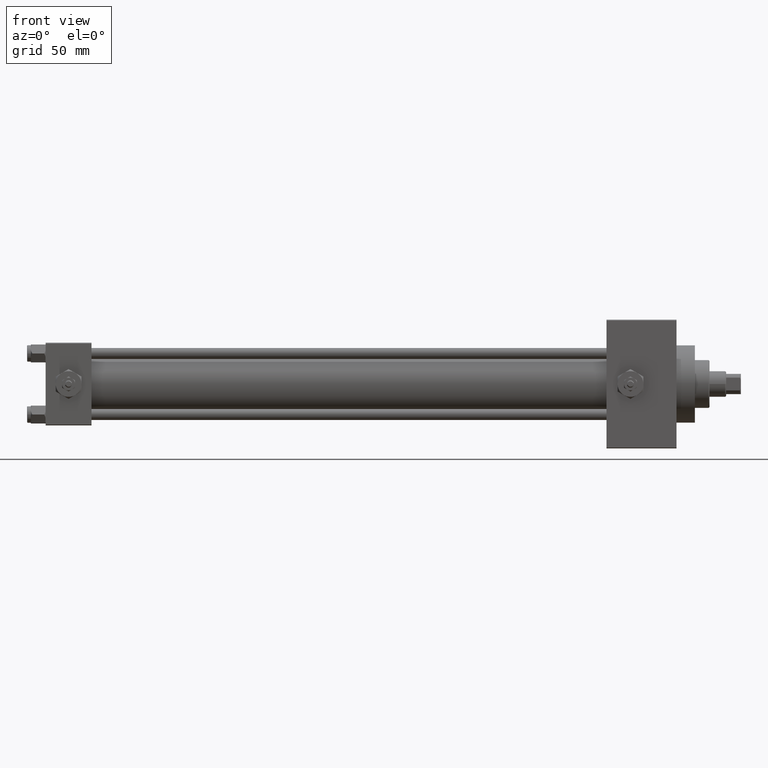
[diagram: clean part render]
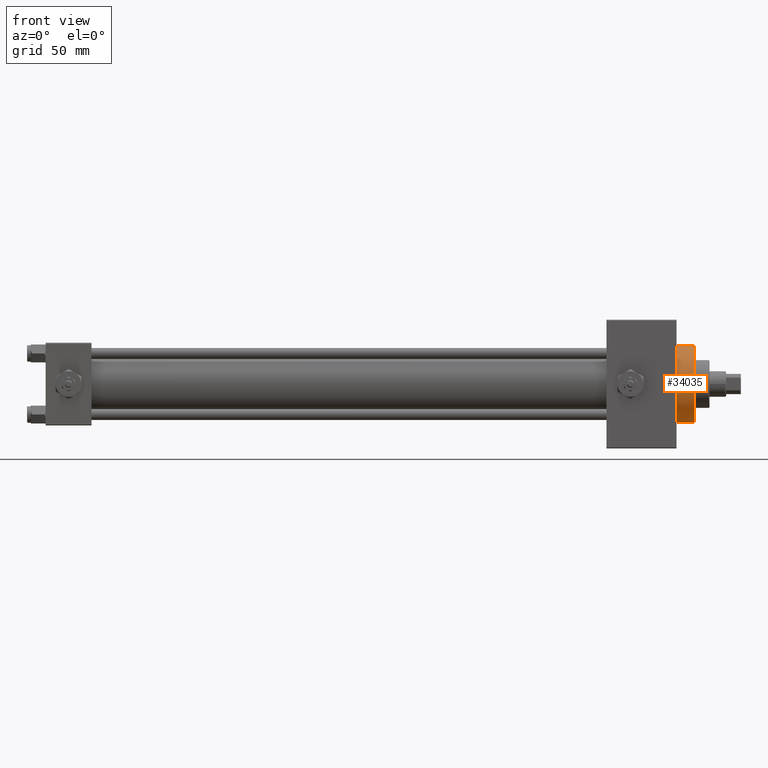
[diagram: same view with one face highlighted and labeled with its STEP entity id]
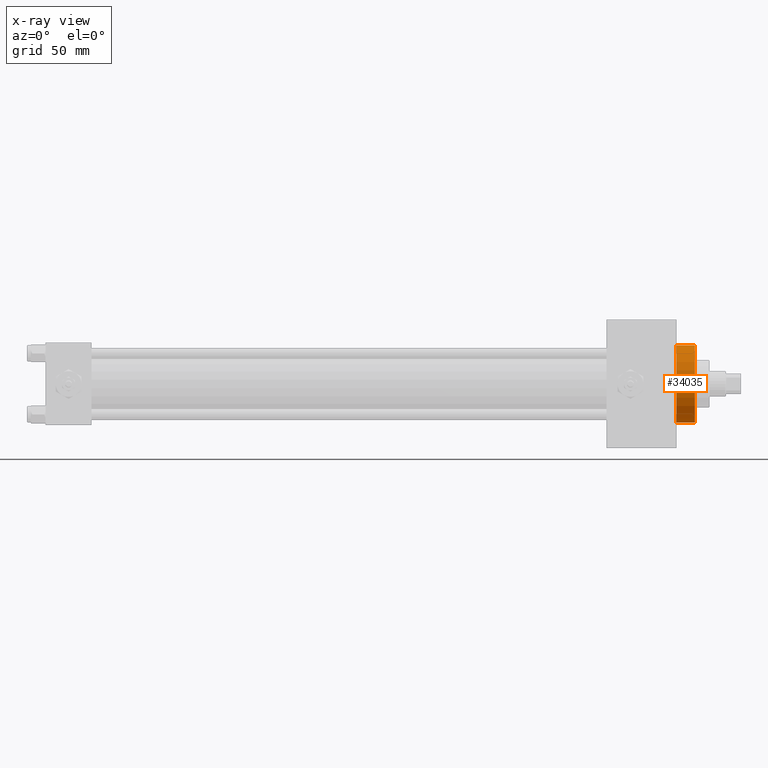
[diagram: x-ray of the same camera — body ghosted, the highlighted face saturated]
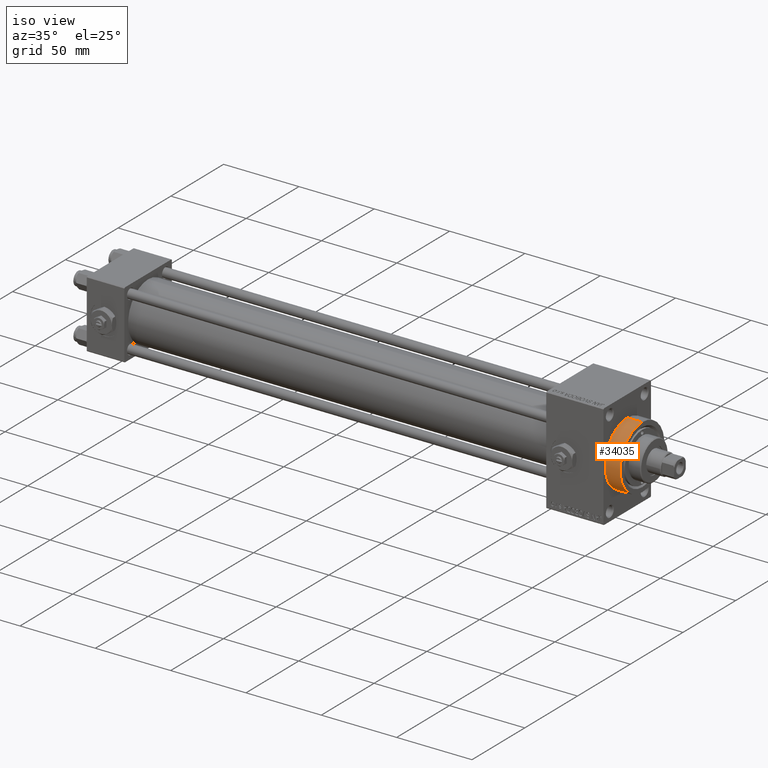
[diagram: same view with one face highlighted and labeled with its STEP entity id]
A machine part, front view. The second image highlights one B-rep face of the part: STEP entity #34035.
The next image is the same camera in x-ray: the body ghosted, the highlighted face saturated — about 0% of this face is hidden behind the body in this view.
A second angle (iso view) of the same face is appended — the face is thin or edge-on in the first view.
In plain terms, the highlighted cylindrical surface (partial cylindrical patch) has radius 21 mm, axis along (-1, -0, -0).
Its self-contained STEP definition (entity closure, byte-faithful):
#289 = CARTESIAN_POINT ( 'NONE',  ( 353.0000000000000568, 2.571758278209441661E-15, -21.00000000000000000 ) ) ;
#4104 = ORIENTED_EDGE ( 'NONE', *, *, #15597, .F. ) ;
#6454 = CARTESIAN_POINT ( 'NONE',  ( 353.0000000000000568, 0.000000000000000000, 0.000000000000000000 ) ) ;
#7465 = DIRECTION ( 'NONE',  ( 0.000000000000000000, 0.000000000000000000, -1.000000000000000000 ) ) ;
#9026 = CARTESIAN_POINT ( 'NONE',  ( 353.0000000000000568, 0.000000000000000000, 21.00000000000000000 ) ) ;
#9721 = CARTESIAN_POINT ( 'NONE',  ( 353.0000000000000568, 2.571758278209441661E-15, -21.00000000000000000 ) ) ;
#10120 = EDGE_CURVE ( 'NONE', #37667, #25903, #43196, .T. ) ;
#11151 = CARTESIAN_POINT ( 'NONE',  ( 343.0000000000000000, 2.571758278209441661E-15, -21.00000000000000000 ) ) ;
#12579 = CIRCLE ( 'NONE', #48390, 21.00000000000000000 ) ;
#13421 = DIRECTION ( 'NONE',  ( 1.000000000000000000, 0.000000000000000000, 0.000000000000000000 ) ) ;
#13873 = CARTESIAN_POINT ( 'NONE',  ( 353.0000000000000568, 0.000000000000000000, 21.00000000000000000 ) ) ;
#15181 = CYLINDRICAL_SURFACE ( 'NONE', #48904, 21.00000000000000000 ) ;
#15597 = EDGE_CURVE ( 'NONE', #37667, #42031, #12579, .T. ) ;
#17281 = EDGE_CURVE ( 'NONE', #42031, #19420, #26685, .T. ) ;
#17757 = AXIS2_PLACEMENT_3D ( 'NONE', #22663, #42349, #7465 ) ;
#19420 = VERTEX_POINT ( 'NONE', #11151 ) ;
#20991 = DIRECTION ( 'NONE',  ( -1.000000000000000000, -0.000000000000000000, -0.000000000000000000 ) ) ;
#22230 = DIRECTION ( 'NONE',  ( -1.000000000000000000, -0.000000000000000000, -0.000000000000000000 ) ) ;
#22663 = CARTESIAN_POINT ( 'NONE',  ( 343.0000000000000000, 0.000000000000000000, 0.000000000000000000 ) ) ;
#24120 = ORIENTED_EDGE ( 'NONE', *, *, #31066, .T. ) ;
#25903 = VERTEX_POINT ( 'NONE', #29516 ) ;
#26685 = LINE ( 'NONE', #289, #30119 ) ;
#27617 = DIRECTION ( 'NONE',  ( 0.000000000000000000, 0.000000000000000000, 1.000000000000000000 ) ) ;
#29516 = CARTESIAN_POINT ( 'NONE',  ( 343.0000000000000000, 0.000000000000000000, 21.00000000000000000 ) ) ;
#29862 = VECTOR ( 'NONE', #20991, 1000.000000000000000 ) ;
#30119 = VECTOR ( 'NONE', #22230, 1000.000000000000000 ) ;
#30626 = DIRECTION ( 'NONE',  ( -1.000000000000000000, -0.000000000000000000, -0.000000000000000000 ) ) ;
#31066 = EDGE_CURVE ( 'NONE', #25903, #19420, #44025, .T. ) ;
#34035 = ADVANCED_FACE ( 'NONE', ( #42595 ), #15181, .T. ) ;
#37131 = ORIENTED_EDGE ( 'NONE', *, *, #17281, .F. ) ;
#37667 = VERTEX_POINT ( 'NONE', #13873 ) ;
#39284 = ORIENTED_EDGE ( 'NONE', *, *, #10120, .T. ) ;
#40848 = DIRECTION ( 'NONE',  ( 0.000000000000000000, 0.000000000000000000, -1.000000000000000000 ) ) ;
#42031 = VERTEX_POINT ( 'NONE', #9721 ) ;
#42349 = DIRECTION ( 'NONE',  ( 1.000000000000000000, 0.000000000000000000, 0.000000000000000000 ) ) ;
#42350 = CARTESIAN_POINT ( 'NONE',  ( 353.0000000000000568, 0.000000000000000000, 0.000000000000000000 ) ) ;
#42595 = FACE_OUTER_BOUND ( 'NONE', #47263, .T. ) ;
#43196 = LINE ( 'NONE', #9026, #29862 ) ;
#44025 = CIRCLE ( 'NONE', #17757, 21.00000000000000000 ) ;
#47263 = EDGE_LOOP ( 'NONE', ( #37131, #4104, #39284, #24120 ) ) ;
#48390 = AXIS2_PLACEMENT_3D ( 'NONE', #6454, #13421, #40848 ) ;
#48904 = AXIS2_PLACEMENT_3D ( 'NONE', #42350, #30626, #27617 ) ;